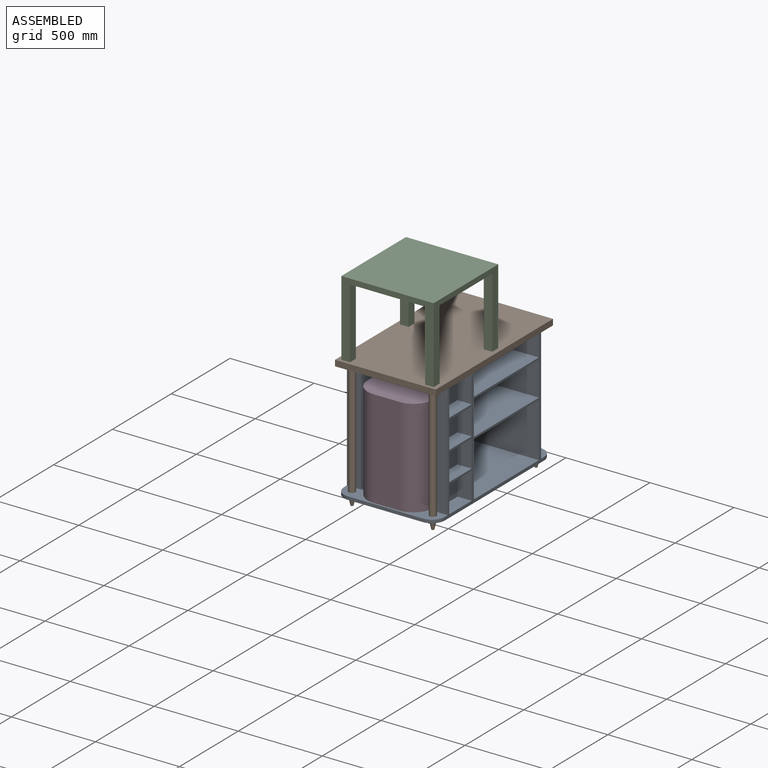
[diagram: assembled view]
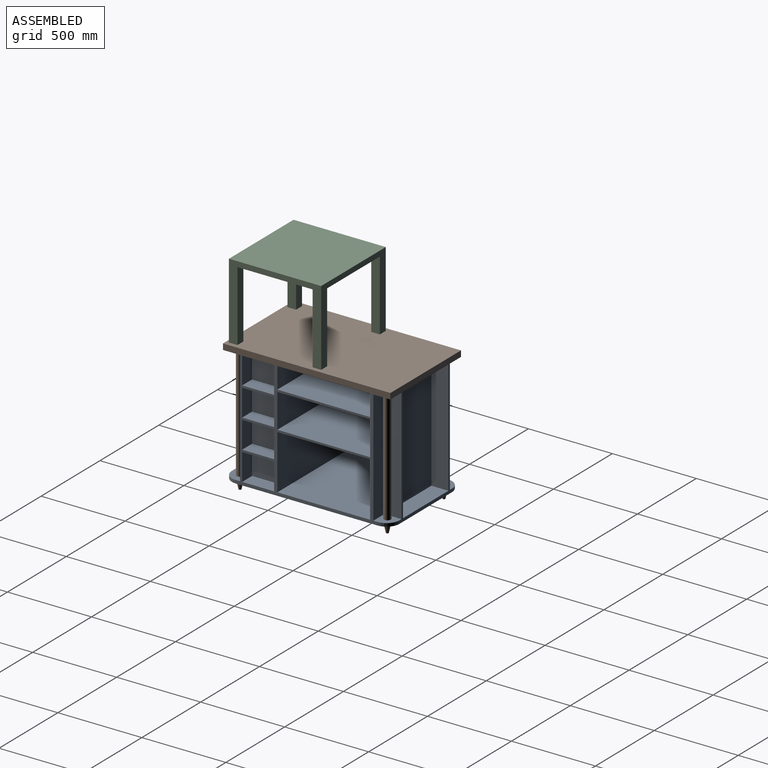
[diagram: assembled view, second angle]
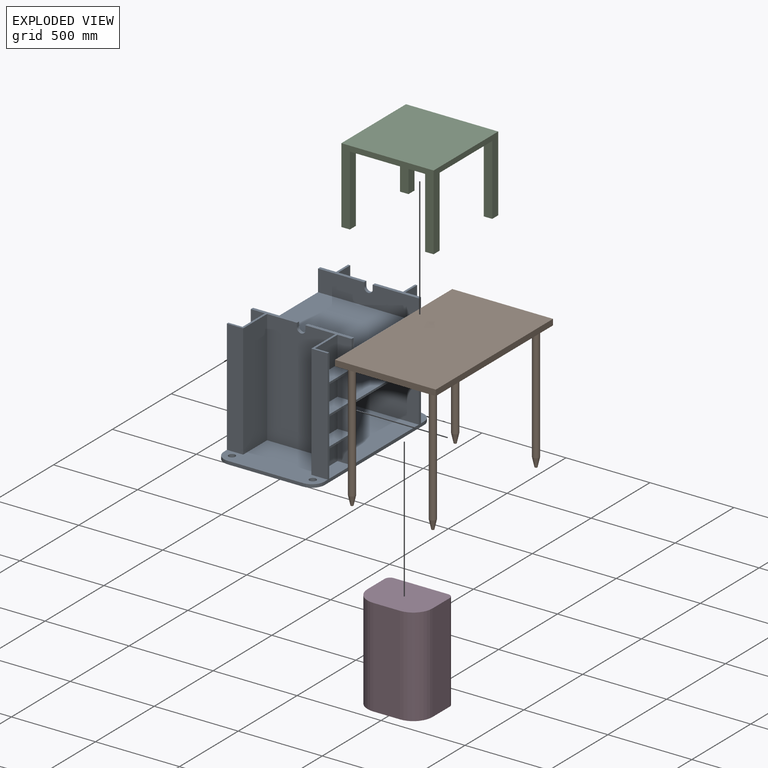
[diagram: exploded view]
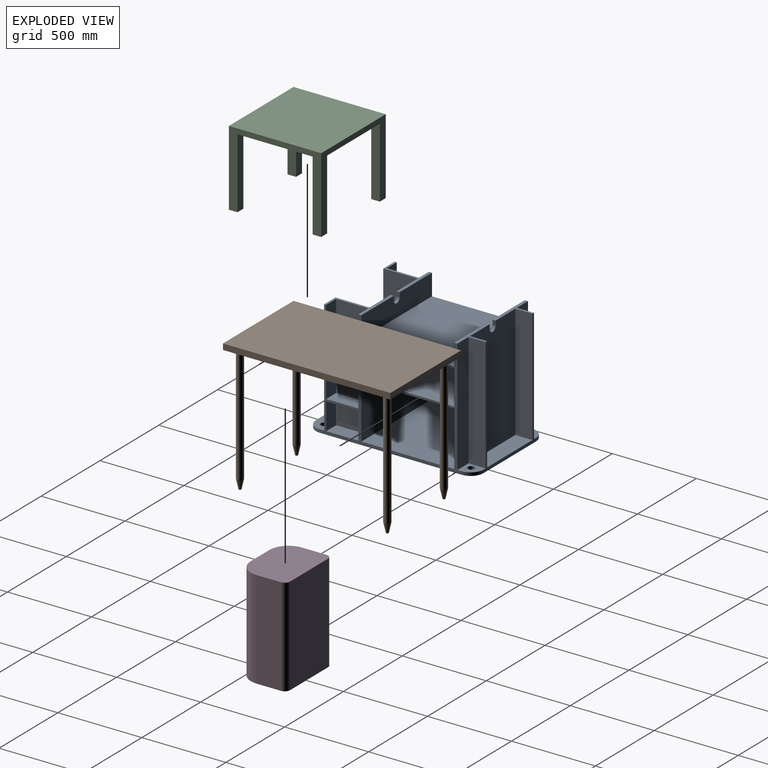
[diagram: exploded view, second angle]
ASSEMBLY  parts=4 mates=3
PART A: 73 faces, bbox 600.1x997x698.5 mm
  f0: plane 190.5x160.34mm, normal (1,0,0), area 30544.3mm2, adj f1,f16,f49,f72
  f1: plane 160.34x84.14mm, normal (0,-1,0), area 13490.4mm2, adj f0,f16,f21,f72
  f2: plane 160.34x84.14mm, normal (0,1,0), area 13490.4mm2, adj f3,f21,f70,f71
  f3: plane 190.5x160.34mm, normal (1,0,0), area 30544.3mm2, adj f2,f4,f70,f71
  f4: plane 160.34x84.14mm, normal (0,-1,0), area 13490.4mm2, adj f3,f21,f70,f71
  f5: plane 160.34x84.14mm, normal (0,1,0), area 13490.4mm2, adj f7,f21,f68,f69
  f6: plane 160.34x84.14mm, normal (0,1,0), area 13490.4mm2, adj f21,f50,f56,f67
  f7: plane 190.5x160.34mm, normal (1,0,0), area 30544.3mm2, adj f5,f8,f68,f69
  f8: plane 160.34x84.14mm, normal (0,-1,0), area 13490.4mm2, adj f7,f21,f68,f69
  f9: plane 274.64x120.65mm, normal (0,0,1), area 6522.2mm2, adj f23,f25,f35,f39,f40,f41,f42,f66
  f10: plane 274.64x222.25mm, normal (0,0,1), area 8881mm2, adj f25,f44,f45,f46,f52,f53,f54,f55
  f11: plane 600.08x323.85mm, normal (0,-1,0), area 194334.3mm2, adj f18,f21,f25,f60
  f12: plane 600.08x323.85mm, normal (0,1,0), area 194334.3mm2, adj f18,f21,f25,f60
  f13: plane 600.08x203.2mm, normal (0,-1,0), area 121935.2mm2, adj f21,f25,f58,f59
  f14: plane 600.08x203.2mm, normal (0,1,0), area 121935.2mm2, adj f21,f25,f58,f59
  f15: plane 600.08x304.8mm, normal (0,0,1), area 138461.6mm2, adj f21,f25,f26,f27,f29,f30,f31,f44
  f16: plane 190.5x84.14mm, normal (0,0,1), area 16028.2mm2, adj f0,f1,f21,f49
  f17: plane 190.5x84.14mm, normal (0,0,1), area 16028.2mm2, adj f25,f53,f54,f55
  f18: plane 600.08x552.45mm, normal (0,0,1), area 331511.4mm2, adj f11,f12,f21,f25
  f19: plane 101.6x94.36mm, normal (0,0,1), area 7043.8mm2, adj f21,f22,f23,f32,f36,f37
  f20: plane 385.95x101.6mm, normal (0,0,1), area 39212.8mm2, adj f23,f38,f39,f40
  f21: plane 844.55x698.5mm, normal (1,0,0), area 71895mm2, adj f1,f2,f4,f5,f6,f8,f11,f12
  f22: cylinder r=76.2mm len=76.2mm, axis (0,0,-1), area 2280.2mm2, adj f19,f21,f23,f34
  f23: plane 698.5x447.68mm, normal (0,1,0), area 25786.2mm2, adj f9,f19,f20,f22,f24,f33,f34,f37
  f24: cylinder r=76.2mm len=76.2mm, axis (0,0,-1), area 2280.2mm2, adj f23,f25,f33,f34
  f25: plane 844.55x698.5mm, normal (-1,0,0), area 64637mm2, adj f9,f10,f11,f12,f13,f14,f15,f17
  f26: cylinder r=76.2mm len=76.2mm, axis (0,0,-1), area 2280.2mm2, adj f15,f25,f27,f34
  f27: plane 447.68x19.05mm, normal (0,-1,0), area 8528.2mm2, adj f15,f26,f31,f34
  f28: cylinder r=20.32mm len=40.64mm, axis (0,0,-1), area 2432.2mm2, adj f33,f34
  f29: cylinder r=20.32mm len=40.64mm, axis (0,0,-1), area 2432.2mm2, adj f15,f34
  f30: cylinder r=20.32mm len=40.64mm, axis (0,0,-1), area 2432.2mm2, adj f15,f34
  f31: cylinder r=76.2mm len=76.2mm, axis (0,0,-1), area 2280.2mm2, adj f15,f21,f27,f34
  f32: cylinder r=20.32mm len=40.64mm, axis (0,0,-1), area 2432.2mm2, adj f19,f34
  f33: plane 101.6x94.36mm, normal (0,0,1), area 7043.8mm2, adj f23,f24,f25,f28,f41,f42
  f34: plane 996.95x600.08mm, normal (0,0,-1), area 588071.8mm2, adj f21,f22,f23,f24,f25,f26,f27,f28
  f35: plane 600.08x127mm, normal (0,-1,0), area 73905.8mm2, adj f9,f21,f25,f43,f57,f64,f65,f66
  f36: plane 679.45x94.36mm, normal (0,1,0), area 64113.6mm2, adj f19,f21,f37,f43
  f37: plane 679.45x101.6mm, normal (1,0,0), area 69032.1mm2, adj f19,f23,f36,f43
  f38: plane 679.45x101.6mm, normal (-1,0,0), area 69032.1mm2, adj f20,f23,f39,f43
  f39: plane 679.45x385.95mm, normal (0,1,0), area 259932mm2, adj f9,f20,f38,f40,f43,f64,f65,f66
  f40: plane 679.45x101.6mm, normal (1,0,0), area 69032.1mm2, adj f9,f20,f23,f39
  f41: plane 679.45x101.6mm, normal (-1,0,0), area 69032.1mm2, adj f9,f23,f33,f42
  f42: plane 679.45x94.36mm, normal (0,1,0), area 64113.6mm2, adj f9,f25,f33,f41
  f43: plane 274.64x120.65mm, normal (0,0,1), area 6522.2mm2, adj f21,f23,f35,f36,f37,f38,f39,f65
  f44: plane 679.45x96.84mm, normal (0,-1,0), area 65796.2mm2, adj f10,f15,f25,f45
  f45: plane 679.45x203.2mm, normal (1,0,0), area 138064.2mm2, adj f10,f15,f44,f46
  f46: plane 679.45x406.4mm, normal (0,-1,0), area 273824.7mm2, adj f10,f15,f45,f47,f56,f61,f62,f63
  f47: plane 679.45x203.2mm, normal (-1,0,0), area 138064.2mm2, adj f15,f46,f48,f56
  f48: plane 679.45x96.84mm, normal (0,-1,0), area 65796.2mm2, adj f15,f21,f47,f56
  f49: plane 160.34x84.14mm, normal (0,1,0), area 13490.4mm2, adj f0,f16,f21,f72
  f50: plane 190.5x160.34mm, normal (1,0,0), area 30544.3mm2, adj f6,f51,f56,f67
  f51: plane 160.34x84.14mm, normal (0,-1,0), area 13490.4mm2, adj f21,f50,f56,f67
  f52: plane 600.08x127mm, normal (0,1,0), area 73905.8mm2, adj f10,f21,f25,f56,f57,f61,f62,f63
  f53: plane 679.45x84.14mm, normal (0,-1,0), area 57167.2mm2, adj f10,f17,f25,f54
  f54: plane 679.45x190.5mm, normal (-1,0,0), area 129435.2mm2, adj f10,f17,f53,f55
  f55: plane 679.45x84.14mm, normal (0,1,0), area 57167.2mm2, adj f10,f17,f25,f54
  f56: plane 274.64x222.25mm, normal (0,0,1), area 8881mm2, adj f6,f21,f46,f47,f48,f50,f51,f52
  f57: plane 600.08x552.45mm, normal (0,0,1), area 331511.4mm2, adj f21,f25,f35,f52
  f58: plane 600.08x552.45mm, normal (0,0,-1), area 331511.4mm2, adj f13,f14,f21,f25
  f59: plane 600.08x552.45mm, normal (0,0,1), area 331511.4mm2, adj f13,f14,f21,f25
  f60: plane 600.08x552.45mm, normal (0,0,-1), area 331511.4mm2, adj f11,f12,f21,f25
  f61: plane 25.4x19.05mm, normal (1,0,0), area 483.9mm2, adj f10,f46,f52,f62
  f62: cylinder r=25.4mm len=50.8mm, axis (0,1,0), area 1520.1mm2, adj f46,f52,f61,f63
  f63: plane 25.4x19.05mm, normal (-1,0,0), area 483.9mm2, adj f46,f52,f56,f62
  f64: cylinder r=25.4mm len=50.8mm, axis (0,1,0), area 1520.1mm2, adj f35,f39,f65,f66
  f65: plane 25.4x19.05mm, normal (-1,0,0), area 483.9mm2, adj f35,f39,f43,f64
  f66: plane 25.4x19.05mm, normal (1,0,0), area 483.9mm2, adj f9,f35,f39,f64
  f67: plane 190.5x84.14mm, normal (0,0,1), area 16028.2mm2, adj f6,f21,f50,f51
  f68: plane 190.5x84.14mm, normal (0,0,-1), area 16028.2mm2, adj f5,f7,f8,f21
  f69: plane 190.5x84.14mm, normal (0,0,1), area 16028.2mm2, adj f5,f7,f8,f21
  f70: plane 190.5x84.14mm, normal (0,0,-1), area 16028.2mm2, adj f2,f3,f4,f21
  f71: plane 190.5x84.14mm, normal (0,0,1), area 16028.2mm2, adj f2,f3,f4,f21
  f72: plane 190.5x84.14mm, normal (0,0,-1), area 16028.2mm2, adj f0,f1,f21,f49
PART B: 18 faces, bbox 600.1x997x790.6 mm
  f0: plane 996.95x34.93mm, normal (-1,0,0), area 34818.5mm2, adj f1,f3,f4,f5
  f1: plane 600.08x34.93mm, normal (0,-1,0), area 20957.6mm2, adj f0,f2,f4,f5
  f2: plane 996.95x34.93mm, normal (1,0,0), area 34818.5mm2, adj f1,f3,f4,f5
  f3: plane 600.08x34.93mm, normal (0,1,0), area 20957.6mm2, adj f0,f2,f4,f5
  f4: plane 996.95x600.08mm, normal (0,0,1), area 598244.8mm2, adj f0,f1,f2,f3
  f5: plane 996.95x600.08mm, normal (0,0,-1), area 593056.1mm2, adj f0,f1,f2,f3,f6,f8,f10,f12
  f6: cylinder r=20.32mm len=698.5mm, axis (0,0,1), area 89180.5mm2, adj f5,f16
  f7: plane 15.24x15.24mm, normal (0,0,-1), area 182.4mm2, adj f16
  f8: cylinder r=20.32mm len=698.5mm, axis (0,0,1), area 89180.5mm2, adj f5,f15
  f9: plane 15.24x15.24mm, normal (0,0,-1), area 182.4mm2, adj f15
  f10: cylinder r=20.32mm len=698.5mm, axis (0,0,1), area 89180.5mm2, adj f5,f14
  f11: plane 15.24x15.24mm, normal (0,0,-1), area 182.4mm2, adj f14
  f12: cylinder r=20.32mm len=698.5mm, axis (0,0,1), area 89180.5mm2, adj f5,f17
  f13: plane 15.24x15.24mm, normal (0,0,-1), area 182.4mm2, adj f17
  f14: cone r=7.62mm half-angle=12.5deg, axis (0,0,1), area 5138.8mm2, adj f10,f11
  f15: cone r=7.62mm half-angle=12.5deg, axis (0,0,1), area 5138.8mm2, adj f8,f9
  f16: cone r=20.32mm half-angle=12.5deg, axis (0,0,1), area 5138.8mm2, adj f6,f7
  f17: cone r=20.32mm half-angle=12.5deg, axis (0,0,1), area 5138.8mm2, adj f12,f13
PART C: 18 faces, bbox 549.3x549.3x450.9 mm
  f0: plane 549.28x549.28mm, normal (0,0,-1), area 291380.5mm2, adj f1,f2,f3,f4,f6,f7,f9,f10
  f1: plane 549.28x450.85mm, normal (-1,0,0), area 60020mm2, adj f0,f2,f4,f5,f9,f11,f13,f14
  f2: plane 549.28x450.85mm, normal (0,-1,0), area 60020mm2, adj f0,f1,f3,f5,f6,f8,f10,f11
  f3: plane 549.28x450.85mm, normal (1,0,0), area 60020mm2, adj f0,f2,f4,f5,f7,f8,f15,f17
  f4: plane 549.28x450.85mm, normal (0,1,0), area 60020mm2, adj f0,f1,f3,f5,f12,f14,f16,f17
  f5: plane 549.28x549.28mm, normal (0,0,1), area 301703mm2, adj f1,f2,f3,f4
  f6: plane 419.1x50.8mm, normal (-1,0,0), area 21290.3mm2, adj f0,f2,f7,f8
  f7: plane 419.1x50.8mm, normal (0,1,0), area 21290.3mm2, adj f0,f3,f6,f8
  f8: plane 50.8x50.8mm, normal (0,0,-1), area 2580.6mm2, adj f2,f3,f6,f7
  f9: plane 419.1x50.8mm, normal (0,1,0), area 21290.3mm2, adj f0,f1,f10,f11
  f10: plane 419.1x50.8mm, normal (1,0,0), area 21290.3mm2, adj f0,f2,f9,f11
  f11: plane 50.8x50.8mm, normal (0,0,-1), area 2580.6mm2, adj f1,f2,f9,f10
  f12: plane 419.1x50.8mm, normal (1,0,0), area 21290.3mm2, adj f0,f4,f13,f14
  f13: plane 419.1x50.8mm, normal (0,-1,0), area 21290.3mm2, adj f0,f1,f12,f14
  f14: plane 50.8x50.8mm, normal (0,0,-1), area 2580.6mm2, adj f1,f4,f12,f13
  f15: plane 419.1x50.8mm, normal (0,-1,0), area 21290.3mm2, adj f0,f3,f16,f17
  f16: plane 419.1x50.8mm, normal (-1,0,0), area 21290.3mm2, adj f0,f4,f15,f17
  f17: plane 50.8x50.8mm, normal (0,0,-1), area 2580.6mm2, adj f3,f4,f15,f16
PART D: 10 faces, bbox 387.4x292.1x584.2 mm
  f0: plane 584.2x146.05mm, normal (-1,0,0), area 85322.4mm2, adj f1,f7,f8,f9
  f1: cylinder r=114.3mm len=584.2mm, axis (0,0,1), area 104888.4mm2, adj f0,f2,f8,f9
  f2: plane 584.2x158.75mm, normal (0,-1,0), area 92741.8mm2, adj f1,f3,f8,f9
  f3: cylinder r=114.3mm len=584.2mm, axis (0,0,1), area 104888.4mm2, adj f2,f4,f8,f9
  f4: plane 584.2x146.05mm, normal (1,0,0), area 85322.4mm2, adj f3,f5,f8,f9
  f5: cylinder r=31.75mm len=584.2mm, axis (0,0,1), area 29135.7mm2, adj f4,f6,f8,f9
  f6: plane 584.2x323.85mm, normal (0,1,0), area 189193.2mm2, adj f5,f7,f8,f9
  f7: cylinder r=31.75mm len=584.2mm, axis (0,0,1), area 29135.7mm2, adj f0,f6,f8,f9
  f8: plane 387.35x292.1mm, normal (0,0,-1), area 107104.9mm2, adj f0,f1,f2,f3,f4,f5,f6,f7
  f9: plane 387.35x292.1mm, normal (0,0,1), area 107104.9mm2, adj f0,f1,f2,f3,f4,f5,f6,f7
PLACE A t=(20.73,5.91,-730.83)mm
PLACE B t=(20.73,5.91,-32.33)mm
PLACE C t=(20.73,-200.15,453.45)mm
PLACE D t=(20.73,-335.86,-127.58)mm
MATE planar C.f11 <-> B.f4  axis (0,0,-1) through (-228.51,-449.39,2.6)mm
MATE planar A.f15 <-> D.f8  axis (0,0,1) through (20.73,-350.44,-711.78)mm
MATE planar B.f8 <-> A.f30  axis (0,0,1) through (261.33,-432.62,-730.83)mm
